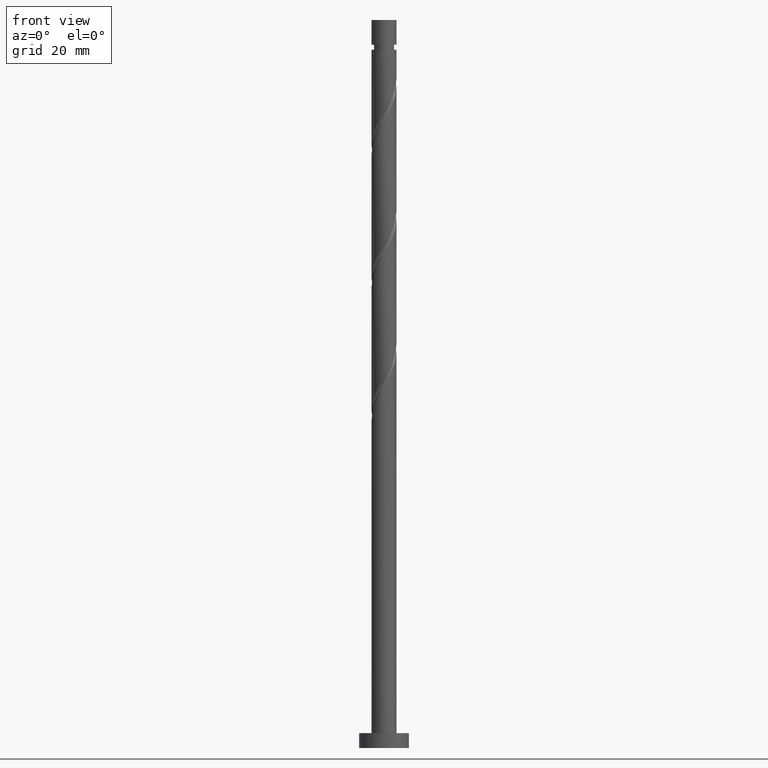
[diagram: clean part render]
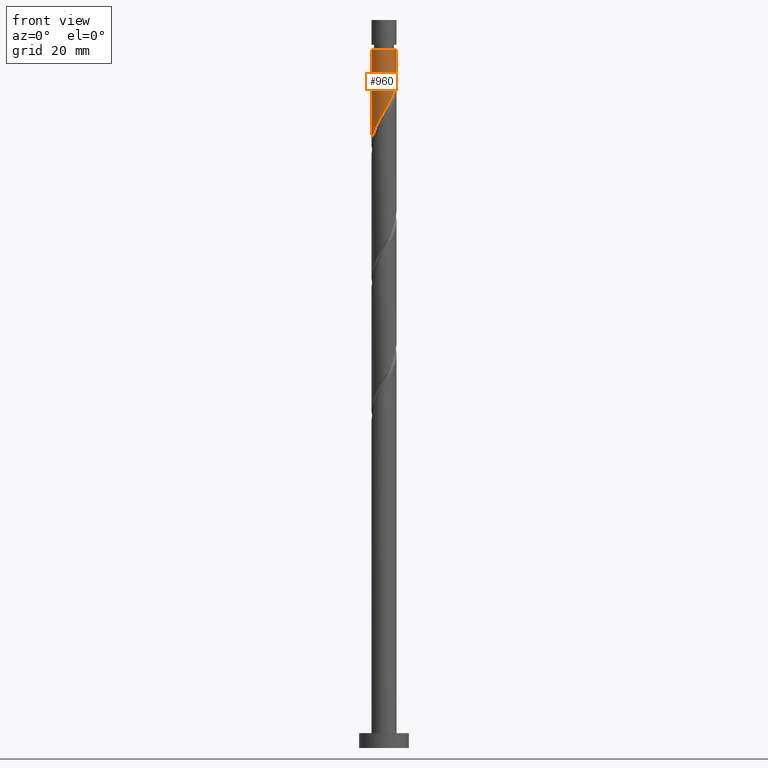
[diagram: same view with one face highlighted and labeled with its STEP entity id]
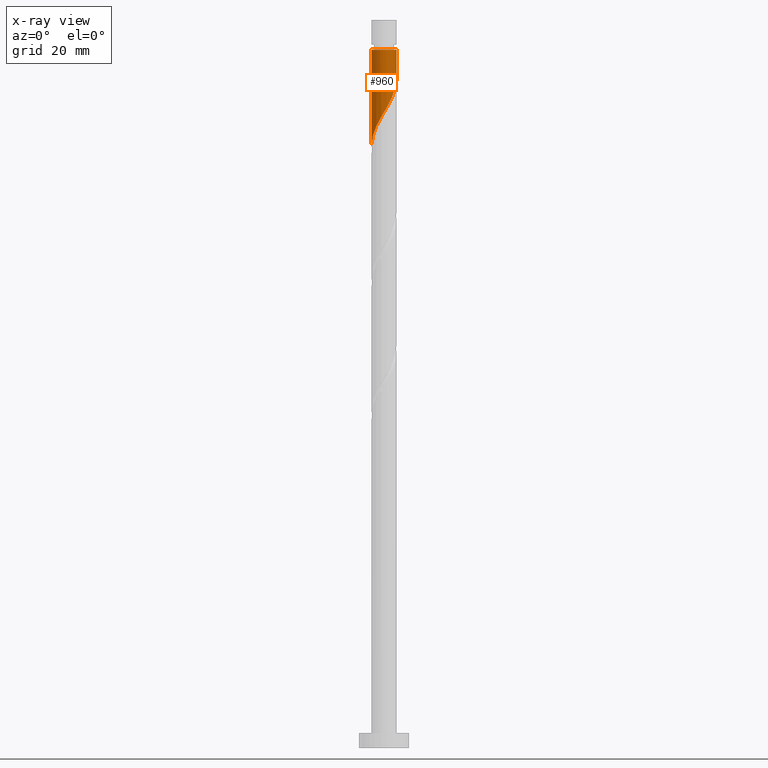
[diagram: x-ray of the same camera — body ghosted, the highlighted face saturated]
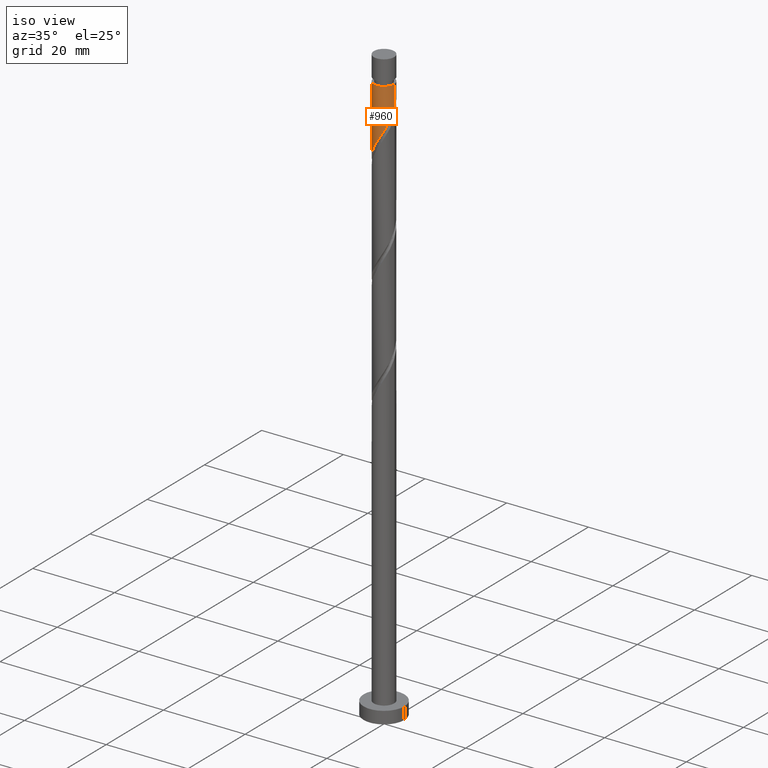
[diagram: same view with one face highlighted and labeled with its STEP entity id]
A machine part, front view. The second image highlights one B-rep face of the part: STEP entity #960.
The next image is the same camera in x-ray: the body ghosted, the highlighted face saturated — about 0% of this face is hidden behind the body in this view.
A second angle (iso view) of the same face is appended — the face is thin or edge-on in the first view.
In plain terms, the highlighted cylindrical surface (edge-blend (fillet) strip) has radius 2.5 mm, axis along (-0, -0, -1).
Its self-contained STEP definition (entity closure, byte-faithful):
#19 = FACE_OUTER_BOUND ( 'NONE', #624, .T. ) ;
#38 = DIRECTION ( 'NONE',  ( -0.000000000000000000, -0.000000000000000000, -1.000000000000000000 ) ) ;
#52 = CARTESIAN_POINT ( 'NONE',  ( -2.177375558832923996, -1.228428132125367167, 123.0518758859309116 ) ) ;
#53 = AXIS2_PLACEMENT_3D ( 'NONE', #87, #863, #1351 ) ;
#59 = CARTESIAN_POINT ( 'NONE',  ( 2.354261794510395855, -0.8411013035946937055, 132.7488455829006568 ) ) ;
#87 = CARTESIAN_POINT ( 'NONE',  ( 0.000000000000000000, 0.000000000000000000, 140.0215728556278805 ) ) ;
#119 = VECTOR ( 'NONE', #459, 1000.000000000000000 ) ;
#161 = CARTESIAN_POINT ( 'NONE',  ( -0.4974937185533109818, -2.450000000000000622, 126.6882395222945803 ) ) ;
#162 = VERTEX_POINT ( 'NONE', #1092 ) ;
#185 = CARTESIAN_POINT ( 'NONE',  ( -1.743088351060509078, -1.792105744758706987, 124.2639970980521440 ) ) ;
#262 = LINE ( 'NONE', #269, #932 ) ;
#269 = CARTESIAN_POINT ( 'NONE',  ( -2.500000000000000000, 0.000000000000000000, 146.0000000000000000 ) ) ;
#306 = CARTESIAN_POINT ( 'NONE',  ( -1.485422444420510191, -2.042724014156698686, 124.8700577041127531 ) ) ;
#419 = CARTESIAN_POINT ( 'NONE',  ( -2.435264748179752026, -0.5652305779706344735, 121.8397546738097219 ) ) ;
#431 = CARTESIAN_POINT ( 'NONE',  ( 2.500000000000001332, -0.07193881630956330819, 134.0822626635439008 ) ) ;
#440 = CARTESIAN_POINT ( 'NONE',  ( 2.021932029057390334, -1.470302985738609403, 131.5367243707794387 ) ) ;
#459 = DIRECTION ( 'NONE',  ( -0.000000000000000000, -0.000000000000000000, -1.000000000000000000 ) ) ;
#469 = ORIENTED_EDGE ( 'NONE', *, *, #667, .F. ) ;
#502 = VERTEX_POINT ( 'NONE', #930 ) ;
#525 = DIRECTION ( 'NONE',  ( -1.000000000000000000, 0.000000000000000000, 0.000000000000000000 ) ) ;
#549 = CARTESIAN_POINT ( 'NONE',  ( -2.353996859965340249, -0.9153687888900176040, 122.4458152798703168 ) ) ;
#565 = CARTESIAN_POINT ( 'NONE',  ( 0.9060516544719204868, -2.330036566114082053, 129.1124819465369740 ) ) ;
#624 = EDGE_LOOP ( 'NONE', ( #469, #918, #1088, #1574 ) ) ;
#644 = CARTESIAN_POINT ( 'NONE',  ( 0.000000000000000000, 0.000000000000000000, 146.0000000000000000 ) ) ;
#667 = EDGE_CURVE ( 'NONE', #502, #706, #720, .T. ) ;
#688 = CARTESIAN_POINT ( 'NONE',  ( 0.2129030368922523175, -2.490917962696094445, 127.9003607344157984 ) ) ;
#694 = CARTESIAN_POINT ( 'NONE',  ( 0.5710429720501322137, -2.460307127265377591, 128.5064213404763791 ) ) ;
#706 = VERTEX_POINT ( 'NONE', #1511 ) ;
#720 = LINE ( 'NONE', #1619, #119 ) ;
#749 = DIRECTION ( 'NONE',  ( -0.000000000000000000, -0.000000000000000000, -1.000000000000000000 ) ) ;
#767 = CYLINDRICAL_SURFACE ( 'NONE', #1438, 2.500000000000000000 ) ;
#810 = CIRCLE ( 'NONE', #53, 2.499999999999994227 ) ;
#814 = CARTESIAN_POINT ( 'NONE',  ( -1.167586491630752787, -2.210597608014944537, 125.4761183101733337 ) ) ;
#820 = CARTESIAN_POINT ( 'NONE',  ( 1.525797355502942709, -1.980389464206530281, 130.3246031586582205 ) ) ;
#863 = DIRECTION ( 'NONE',  ( -0.000000000000000000, -0.000000000000000000, -1.000000000000000000 ) ) ;
#918 = ORIENTED_EDGE ( 'NONE', *, *, #1643, .T. ) ;
#930 = CARTESIAN_POINT ( 'NONE',  ( 2.499999999999994227, 3.061616997868380183E-16, 140.0215728556278805 ) ) ;
#932 = VECTOR ( 'NONE', #749, 1000.000000000000000 ) ;
#940 = CARTESIAN_POINT ( 'NONE',  ( -2.500000000000000888, 2.512745878187399992E-15, 120.8710273349287689 ) ) ;
#955 = CARTESIAN_POINT ( 'NONE',  ( 1.241060336893708982, -2.199766004962786070, 129.7185425525975688 ) ) ;
#960 = ADVANCED_FACE ( 'NONE', ( #19 ), #767, .T. ) ;
#1054 = CARTESIAN_POINT ( 'NONE',  ( -0.8497505388409951621, -2.378471201873189944, 126.0821789162339428 ) ) ;
#1088 = ORIENTED_EDGE ( 'NONE', *, *, #1305, .T. ) ;
#1092 = CARTESIAN_POINT ( 'NONE',  ( -2.500000000000000888, 2.512745878187399992E-15, 120.8710273349287689 ) ) ;
#1098 = VERTEX_POINT ( 'NONE', #1429 ) ;
#1305 = EDGE_CURVE ( 'NONE', #1098, #162, #262, .T. ) ;
#1317 = CARTESIAN_POINT ( 'NONE',  ( -2.000754257700506855, -1.541487475360715953, 123.6579364919915349 ) ) ;
#1325 = CARTESIAN_POINT ( 'NONE',  ( -2.500000000000001776, -0.2863223184628040374, 121.3569872879000542 ) ) ;
#1331 = CARTESIAN_POINT ( 'NONE',  ( 2.233329684002603344, -1.179593048026942981, 132.1427849768400051 ) ) ;
#1351 = DIRECTION ( 'NONE',  ( -1.000000000000000000, 0.000000000000000000, 0.000000000000000000 ) ) ;
#1429 = CARTESIAN_POINT ( 'NONE',  ( -2.499999999999994227, 0.000000000000000000, 140.0215728556278805 ) ) ;
#1437 = EDGE_CURVE ( 'NONE', #706, #162, #1585, .T. ) ;
#1438 = AXIS2_PLACEMENT_3D ( 'NONE', #644, #38, #525 ) ;
#1441 = CARTESIAN_POINT ( 'NONE',  ( 2.500000000000001332, 4.860966728636340702E-16, 134.2043606682620691 ) ) ;
#1452 = CARTESIAN_POINT ( 'NONE',  ( 1.810534374112177769, -1.761012923450275158, 130.9306637647187870 ) ) ;
#1460 = CARTESIAN_POINT ( 'NONE',  ( -0.1452368982656264962, -2.521528798126811299, 127.2943001283551894 ) ) ;
#1511 = CARTESIAN_POINT ( 'NONE',  ( 2.500000000000001332, 4.860966728636340702E-16, 134.2043606682620691 ) ) ;
#1567 = CARTESIAN_POINT ( 'NONE',  ( 2.495863270706176085, -0.1437585960555968490, 133.9609667950218466 ) ) ;
#1574 = ORIENTED_EDGE ( 'NONE', *, *, #1437, .F. ) ;
#1576 = CARTESIAN_POINT ( 'NONE',  ( 2.475193905018188367, -0.5026095591624448744, 133.3549061889611949 ) ) ;
#1585 =( BOUNDED_CURVE ( )  B_SPLINE_CURVE ( 2, ( #1441, #431, #1567, #1576, #59, #1331, #440, #1452, #820, #955, #565, #694, #688, #1460, #161, #1054, #814, #306, #185, #1317, #52, #549, #419, #1325, #940 ),
 .UNSPECIFIED., .F., .T. ) 
 B_SPLINE_CURVE_WITH_KNOTS ( ( 3, 2, 2, 2, 2, 2, 2, 2, 2, 2, 2, 2, 3 ),
 ( 0.3045252162417515507, 0.3068181818181818232, 0.3181818181818181768, 0.3295454545454545303, 0.3409090909090908839, 0.3522727272727272929, 0.3636363636363636465, 0.3750000000000000000, 0.3863636363636363535, 0.3977272727272727071, 0.4090909090909091161, 0.4204545454545454697, 0.4295252162417514397 ),
 .UNSPECIFIED. ) 
 CURVE ( )  GEOMETRIC_REPRESENTATION_ITEM ( )  RATIONAL_B_SPLINE_CURVE ( ( 0.9061101570135595695, 0.9072237824201416778, 0.9090909090909189416, 0.8998376744372214020, 0.9090909090909189416, 0.8998376744372214020, 0.9090909090909189416, 0.8998376744372214020, 0.9090909090909189416, 0.8998376744372214020, 0.9090909090909189416, 0.8998376744372214020, 0.9090909090909189416, 0.8998376744372214020, 0.9090909090909189416, 0.8998376744372214020, 0.9090909090909189416, 0.8998376744372214020, 0.9090909090909189416, 0.8998376744372214020, 0.9090909090909189416, 0.8998376744372214020, 0.9090909090909189416, 0.9017048011079987768, 0.9061101570135592365 ) ) 
 REPRESENTATION_ITEM ( '' )  );
#1619 = CARTESIAN_POINT ( 'NONE',  ( 2.500000000000000000, 3.061616997868383141E-16, 146.0000000000000000 ) ) ;
#1643 = EDGE_CURVE ( 'NONE', #502, #1098, #810, .T. ) ;